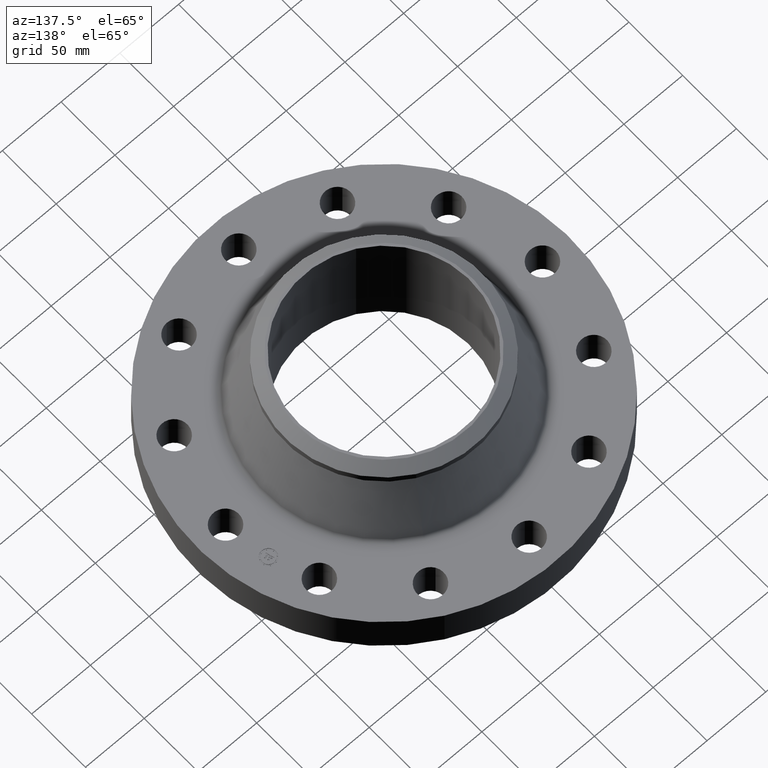
[diagram: clean part render]
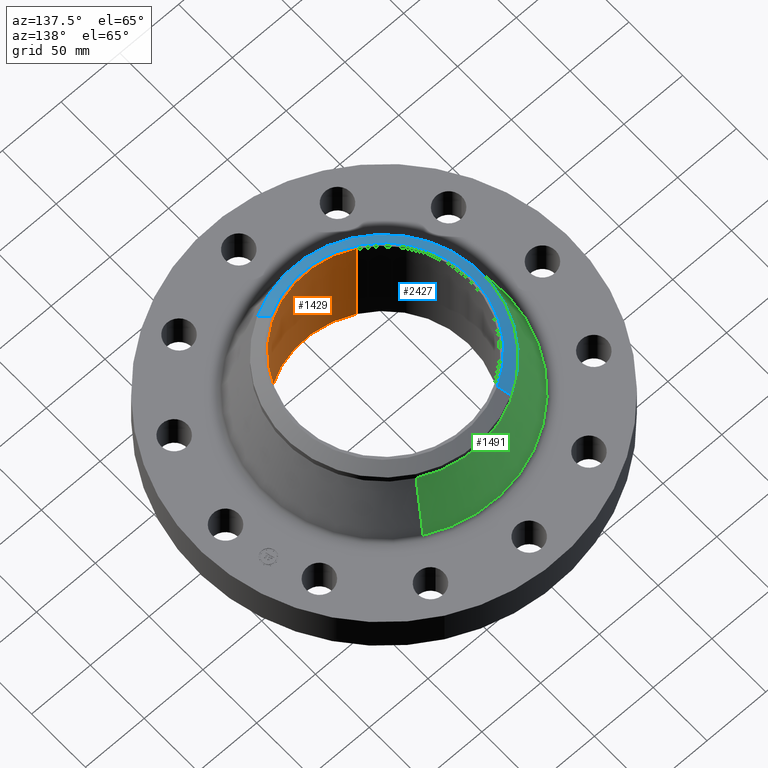
[diagram: same view with three faces highlighted in distinct colors, each labeled with its STEP entity id]
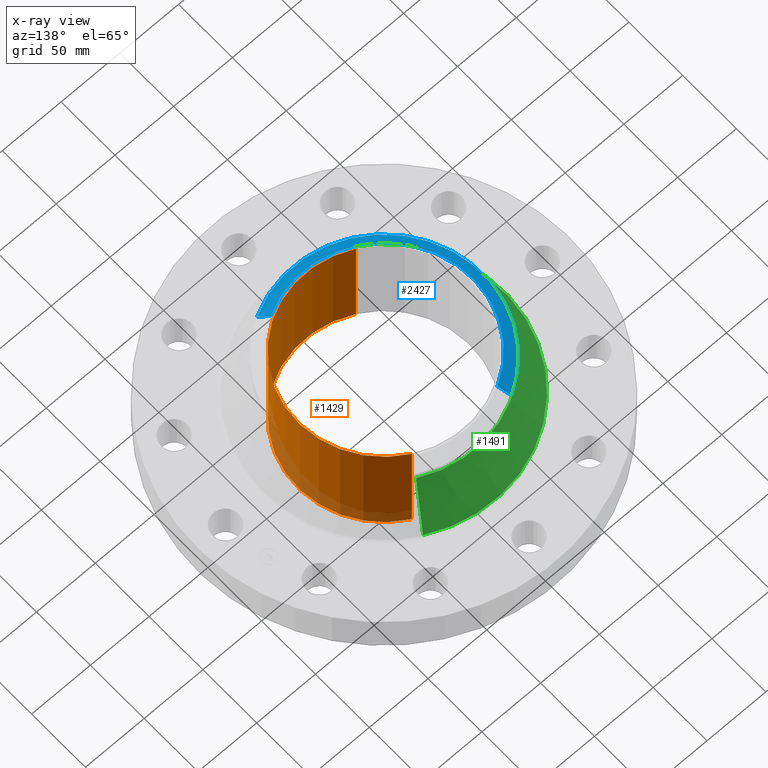
[diagram: x-ray of the same camera — body ghosted, the three highlighted faces saturated]
A machine part, auxiliary view with three faces highlighted in distinct colors.
The next image is the same camera in x-ray (body ghosted, the three faces saturated) — at least one of them is partly hidden behind the body in this view.
Their STEP definitions:

[orange] entity #1429 — the highlighted cylindrical surface (partial cylindrical patch) has radius 73.1647 mm, axis along (0, 0, -1).
#710=AXIS2_PLACEMENT_3D('Circle Axis2P3D',#708,#709,$) ;
#1402=AXIS2_PLACEMENT_3D('Cylinder Axis2P3D',#1399,#1400,#1401) ;
#1406=AXIS2_PLACEMENT_3D('Circle Axis2P3D',#1404,#1405,$) ;
#708=CARTESIAN_POINT('Axis2P3D Location',(-4.36645295599E-011,1.23248393119E-011,0.)) ;
#712=CARTESIAN_POINT('Vertex',(1.38098526396,2.52787656953,-7.0139519739E-012)) ;
#714=CARTESIAN_POINT('Vertex',(-1.38098526396,-2.52787656953,-7.55301333288E-015)) ;
#1399=CARTESIAN_POINT('Axis2P3D Location',(0.,0.,1.91000000001)) ;
#1404=CARTESIAN_POINT('Axis2P3D Location',(0.,0.,3.82000000003)) ;
#1408=CARTESIAN_POINT('Vertex',(1.38098526395,2.52787656954,3.82000000003)) ;
#1410=CARTESIAN_POINT('Vertex',(-1.38098526396,-2.52787656953,3.82000000003)) ;
#1413=CARTESIAN_POINT('Line Origine',(1.38098526396,2.52787656953,1.91000000001)) ;
#1418=CARTESIAN_POINT('Line Origine',(-1.38098526396,-2.52787656953,1.91000000001)) ;
#709=DIRECTION('Axis2P3D Direction',(0.,0.,-0.0393700787402)) ;
#1400=DIRECTION('Axis2P3D Direction',(0.,0.,-0.0393700787402)) ;
#1401=DIRECTION('Axis2P3D XDirection',(0.0188750212048,0.0345504945627,0.)) ;
#1405=DIRECTION('Axis2P3D Direction',(0.,0.,-0.0393700787402)) ;
#1414=DIRECTION('Vector Direction',(0.,0.,-0.0393700787402)) ;
#1419=DIRECTION('Vector Direction',(0.,0.,-0.0393700787402)) ;
#1415=VECTOR('Line Direction',#1414,0.0393700787402) ;
#1420=VECTOR('Line Direction',#1419,0.0393700787402) ;
#1424=ORIENTED_EDGE('',*,*,#1412,.F.) ;
#1425=ORIENTED_EDGE('',*,*,#1417,.T.) ;
#1426=ORIENTED_EDGE('',*,*,#716,.T.) ;
#1427=ORIENTED_EDGE('',*,*,#1422,.F.) ;
#1429=ADVANCED_FACE('PartBody',(#1428),#1403,.F.) ;
#711=CIRCLE('generated circle',#710,2.88050000001) ;
#1407=CIRCLE('generated circle',#1406,2.88050000001) ;
#1403=CYLINDRICAL_SURFACE('generated cylinder',#1402,2.88050000001) ;
#716=EDGE_CURVE('',#713,#715,#711,.T.) ;
#1412=EDGE_CURVE('',#1409,#1411,#1407,.T.) ;
#1417=EDGE_CURVE('',#1409,#713,#1416,.T.) ;
#1422=EDGE_CURVE('',#1411,#715,#1421,.T.) ;
#1423=EDGE_LOOP('',(#1424,#1425,#1426,#1427)) ;
#1428=FACE_OUTER_BOUND('',#1423,.T.) ;
#1416=LINE('Line',#1413,#1415) ;
#1421=LINE('Line',#1418,#1420) ;
#713=VERTEX_POINT('',#712) ;
#715=VERTEX_POINT('',#714) ;
#1409=VERTEX_POINT('',#1408) ;
#1411=VERTEX_POINT('',#1410) ;

[blue] entity #2427 — the highlighted conical surface has half-angle 52.5 deg.
#1718=AXIS2_PLACEMENT_3D('Circle Axis2P3D',#1716,#1717,$) ;
#1758=AXIS2_PLACEMENT_3D('Circle Axis2P3D',#1756,#1757,$) ;
#1809=AXIS2_PLACEMENT_3D('Circle Axis2P3D',#1807,#1808,$) ;
#2418=AXIS2_PLACEMENT_3D('Cone Axis2P3D',#2415,#2416,#2417) ;
#1711=CARTESIAN_POINT('Vertex',(1.41873530636,-2.59697755866,3.82000000002)) ;
#1713=CARTESIAN_POINT('Vertex',(-1.41873530636,2.59697755866,3.82000000002)) ;
#1716=CARTESIAN_POINT('Axis2P3D Location',(1.28115191247E-011,3.21198885512E-012,3.82000000002)) ;
#1753=CARTESIAN_POINT('Vertex',(-1.58929566048,-2.90918619268,3.5470158716)) ;
#1756=CARTESIAN_POINT('Axis2P3D Location',(0.,0.,3.5470158716)) ;
#1760=CARTESIAN_POINT('Vertex',(-1.58929566048,2.90918619268,3.5470158716)) ;
#1804=CARTESIAN_POINT('Vertex',(1.58929566048,-2.90918619268,3.54701587161)) ;
#1807=CARTESIAN_POINT('Axis2P3D Location',(0.,0.,3.5470158716)) ;
#2390=CARTESIAN_POINT('Line Origine',(-1.50401548342,2.75308187567,3.68350793582)) ;
#2395=CARTESIAN_POINT('Line Origine',(1.50401548342,-2.75308187567,3.68350793582)) ;
#2415=CARTESIAN_POINT('Axis2P3D Location',(0.,0.,3.82000000002)) ;
#1717=DIRECTION('Axis2P3D Direction',(0.,0.,-0.0393700787402)) ;
#1757=DIRECTION('Axis2P3D Direction',(-0.,0.,-0.0393700787402)) ;
#1808=DIRECTION('Axis2P3D Direction',(-0.,0.,-0.0393700787402)) ;
#2391=DIRECTION('Vector Direction',(-0.014974561121,0.02741075027,-0.023966985394)) ;
#2396=DIRECTION('Vector Direction',(0.014974561121,-0.02741075027,-0.023966985394)) ;
#2416=DIRECTION('Axis2P3D Direction',(-0.,-0.,-0.0393700787402)) ;
#2417=DIRECTION('Axis2P3D XDirection',(0.0188750212049,-0.0345504945626,0.)) ;
#2392=VECTOR('Line Direction',#2391,0.0393700787402) ;
#2397=VECTOR('Line Direction',#2396,0.0393700787402) ;
#2421=ORIENTED_EDGE('',*,*,#2399,.F.) ;
#2422=ORIENTED_EDGE('',*,*,#1720,.F.) ;
#2423=ORIENTED_EDGE('',*,*,#2394,.T.) ;
#2424=ORIENTED_EDGE('',*,*,#1762,.T.) ;
#2425=ORIENTED_EDGE('',*,*,#1811,.F.) ;
#2427=ADVANCED_FACE('PartBody',(#2426),#2419,.T.) ;
#1719=CIRCLE('generated circle',#1718,2.95924015749) ;
#1759=CIRCLE('generated circle',#1758,3.31500000001) ;
#1810=CIRCLE('generated circle',#1809,3.31500000001) ;
#2419=CONICAL_SURFACE('Cone',#2418,2.95924015749,0.916297857297) ;
#1720=EDGE_CURVE('',#1714,#1712,#1719,.F.) ;
#1762=EDGE_CURVE('',#1761,#1754,#1759,.F.) ;
#1811=EDGE_CURVE('',#1805,#1754,#1810,.T.) ;
#2394=EDGE_CURVE('',#1714,#1761,#2393,.T.) ;
#2399=EDGE_CURVE('',#1712,#1805,#2398,.T.) ;
#2420=EDGE_LOOP('',(#2421,#2422,#2423,#2424,#2425)) ;
#2426=FACE_OUTER_BOUND('',#2420,.T.) ;
#2393=LINE('Line',#2390,#2392) ;
#2398=LINE('Line',#2395,#2397) ;
#1712=VERTEX_POINT('',#1711) ;
#1714=VERTEX_POINT('',#1713) ;
#1754=VERTEX_POINT('',#1753) ;
#1761=VERTEX_POINT('',#1760) ;
#1805=VERTEX_POINT('',#1804) ;

[green] entity #1491 — the highlighted conical surface has half-angle 21.099 deg.
#1276=AXIS2_PLACEMENT_3D('Circle Axis2P3D',#1274,#1275,$) ;
#1464=AXIS2_PLACEMENT_3D('Cone Axis2P3D',#1461,#1462,#1463) ;
#1475=AXIS2_PLACEMENT_3D('Circle Axis2P3D',#1473,#1474,$) ;
#1271=CARTESIAN_POINT('Vertex',(-1.93226031699,-3.53697878539,1.45680199496)) ;
#1274=CARTESIAN_POINT('Axis2P3D Location',(0.,0.,1.45680199496)) ;
#1278=CARTESIAN_POINT('Vertex',(1.93226031699,3.53697878539,1.45680199496)) ;
#1461=CARTESIAN_POINT('Axis2P3D Location',(0.,0.,3.31079539917)) ;
#1466=CARTESIAN_POINT('Line Origine',(-1.76077798873,-3.22308248903,2.38379869706)) ;
#1470=CARTESIAN_POINT('Vertex',(-1.58929566048,-2.90918619268,3.31079539917)) ;
#1473=CARTESIAN_POINT('Axis2P3D Location',(0.,0.,3.31079539917)) ;
#1477=CARTESIAN_POINT('Vertex',(1.58929566048,2.90918619268,3.31079539917)) ;
#1480=CARTESIAN_POINT('Line Origine',(1.76077798873,3.22308248903,2.38379869706)) ;
#1275=DIRECTION('Axis2P3D Direction',(-0.,0.,-0.0393700787402)) ;
#1462=DIRECTION('Axis2P3D Direction',(0.,0.,-0.0393700787402)) ;
#1463=DIRECTION('Axis2P3D XDirection',(-0.0188750212049,-0.0345504945626,0.)) ;
#1467=DIRECTION('Vector Direction',(-0.00679469384318,-0.0124376036527,-0.0367306581885)) ;
#1474=DIRECTION('Axis2P3D Direction',(-0.,0.,-0.0393700787402)) ;
#1481=DIRECTION('Vector Direction',(0.00679469384318,0.0124376036527,-0.0367306581885)) ;
#1468=VECTOR('Line Direction',#1467,0.0393700787402) ;
#1482=VECTOR('Line Direction',#1481,0.0393700787402) ;
#1486=ORIENTED_EDGE('',*,*,#1280,.F.) ;
#1487=ORIENTED_EDGE('',*,*,#1472,.T.) ;
#1488=ORIENTED_EDGE('',*,*,#1479,.T.) ;
#1489=ORIENTED_EDGE('',*,*,#1484,.F.) ;
#1491=ADVANCED_FACE('PartBody',(#1490),#1465,.T.) ;
#1277=CIRCLE('generated circle',#1276,4.03036584703) ;
#1476=CIRCLE('generated circle',#1475,3.31500000001) ;
#1465=CONICAL_SURFACE('Cone',#1464,3.31500000001,0.3682500741) ;
#1280=EDGE_CURVE('',#1272,#1279,#1277,.T.) ;
#1472=EDGE_CURVE('',#1272,#1471,#1469,.F.) ;
#1479=EDGE_CURVE('',#1471,#1478,#1476,.T.) ;
#1484=EDGE_CURVE('',#1279,#1478,#1483,.F.) ;
#1485=EDGE_LOOP('',(#1486,#1487,#1488,#1489)) ;
#1490=FACE_OUTER_BOUND('',#1485,.T.) ;
#1469=LINE('Line',#1466,#1468) ;
#1483=LINE('Line',#1480,#1482) ;
#1272=VERTEX_POINT('',#1271) ;
#1279=VERTEX_POINT('',#1278) ;
#1471=VERTEX_POINT('',#1470) ;
#1478=VERTEX_POINT('',#1477) ;